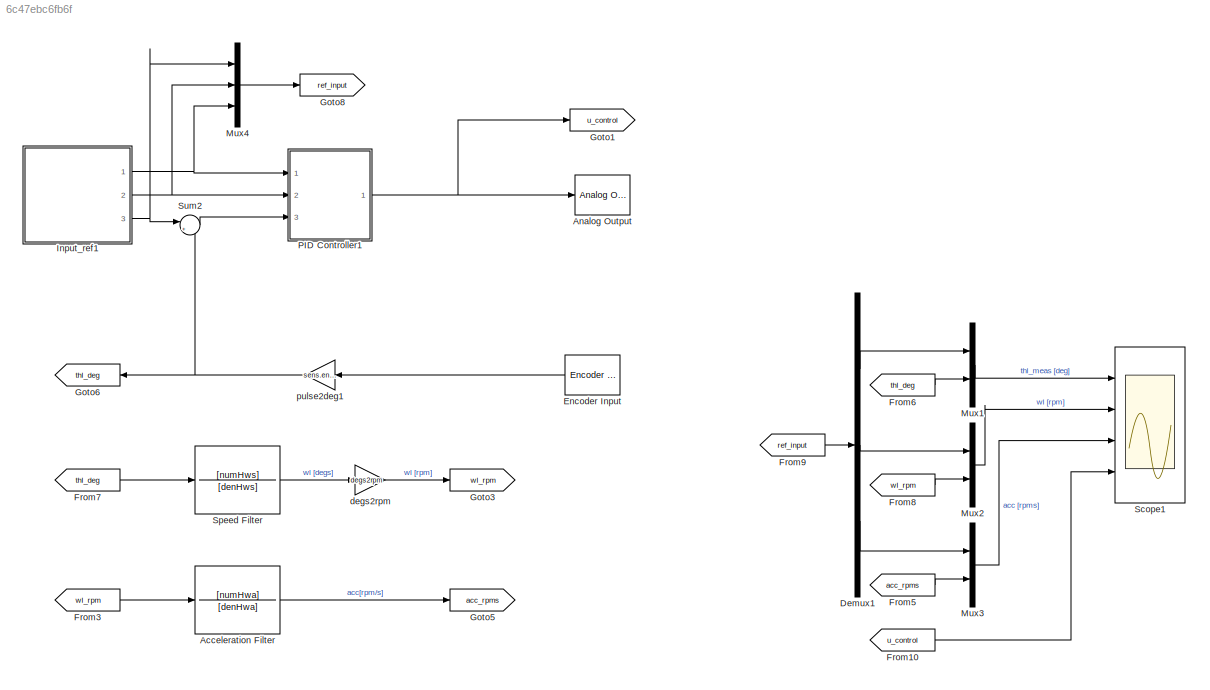
MODEL slx_6c47ebc6fb6f
KIND model
CONFIG AbsTol = auto
CONFIG EnableMultiTasking = off
CONFIG FixedStep = 0.001
CONFIG MaxStep = auto
CONFIG MinStep = auto
CONFIG RelTol = 1e-3
CONFIG SampleTimeConstraint = Unconstrained
CONFIG SolverName = ode3
CONFIG StartTime = 0.0
CONFIG StopTime = 9
BLOCK [TransferFcn] Acceleration Filter
  Denominator = [denHwa]
  Numerator = [numHwa]
BLOCK [Reference] Analog Output  REF=sldrtlib/Analog Output
  AttributesFormatString = National Instruments\nPCI-6221 [auto]
  Ports = [1]
  SourceBlock = sldrtlib/Analog Output
  SourceProductBaseCode = WT
  SourceType = Simulink Desktop Real-Time Analog Output
BLOCK [Demux] Demux1
  Outputs = 3
  Ports = [1, 3]
BLOCK [Reference] Encoder Input  REF=sldrtlib/Encoder Input
  AttributesFormatString = National Instruments\nPCI-6221 [auto]
  Ports = [0, 1]
  SourceBlock = sldrtlib/Encoder Input
  SourceProductBaseCode = WT
  SourceType = Simulink Desktop Real-Time Encoder Input
BLOCK [From] From10
  GotoTag = u_control
BLOCK [From] From3
  GotoTag = wl_rpm
BLOCK [From] From5
  GotoTag = acc_rpms
BLOCK [From] From6
  GotoTag = thl_deg
BLOCK [From] From7
  GotoTag = thl_deg
BLOCK [From] From8
  GotoTag = wl_rpm
BLOCK [From] From9
  GotoTag = ref_input
BLOCK [Goto] Goto1
  GotoTag = u_control
BLOCK [Goto] Goto3
  GotoTag = wl_rpm
BLOCK [Goto] Goto5
  GotoTag = acc_rpms
BLOCK [Goto] Goto6
  GotoTag = thl_deg
BLOCK [Goto] Goto8
  GotoTag = ref_input
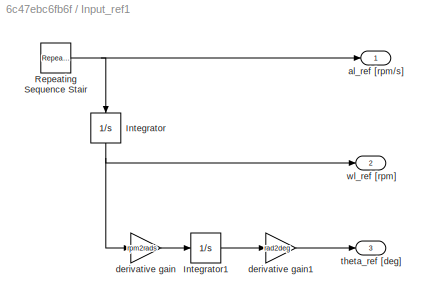
BLOCK [SubSystem] Input_ref1
  Ports = [0, 3]
  RequestExecContextInheritance = off
BLOCK [Integrator] Input_ref1/Integrator
  NameLocation = left
  Ports = [1, 1]
BLOCK [Integrator] Input_ref1/Integrator1
  Ports = [1, 1]
BLOCK [Reference] Input_ref1/Repeating Sequence Stair  REF=simulink/Sources/Repeating
Sequence
Stair
  Ports = [0, 1]
  SourceBlock = simulink/Sources/Repeating\nSequence\nStair
  SourceProductBaseCode = SL
  SourceType = Repeating Sequence Stair
BLOCK [Outport] Input_ref1/al_ref [rpm//s]
  VectorParamsAs1DForOutWhenUnconnected = off
BLOCK [Gain] Input_ref1/derivative gain
  Gain = rpm2rads
BLOCK [Gain] Input_ref1/derivative gain1
  Gain = rad2deg
BLOCK [Outport] Input_ref1/theta_ref [deg]
  Port = 3
  VectorParamsAs1DForOutWhenUnconnected = off
BLOCK [Outport] Input_ref1/wl_ref [rpm]
  Port = 2
  VectorParamsAs1DForOutWhenUnconnected = off
BLOCK [Mux] Mux1
  DisplayOption = bar
  Inputs = 2
  Ports = [2, 1]
BLOCK [Mux] Mux2
  DisplayOption = bar
  Inputs = 2
  Ports = [2, 1]
BLOCK [Mux] Mux3
  DisplayOption = bar
  Inputs = 2
  Ports = [2, 1]
BLOCK [Mux] Mux4
  DisplayOption = bar
  Inputs = 3
  Ports = [3, 1]
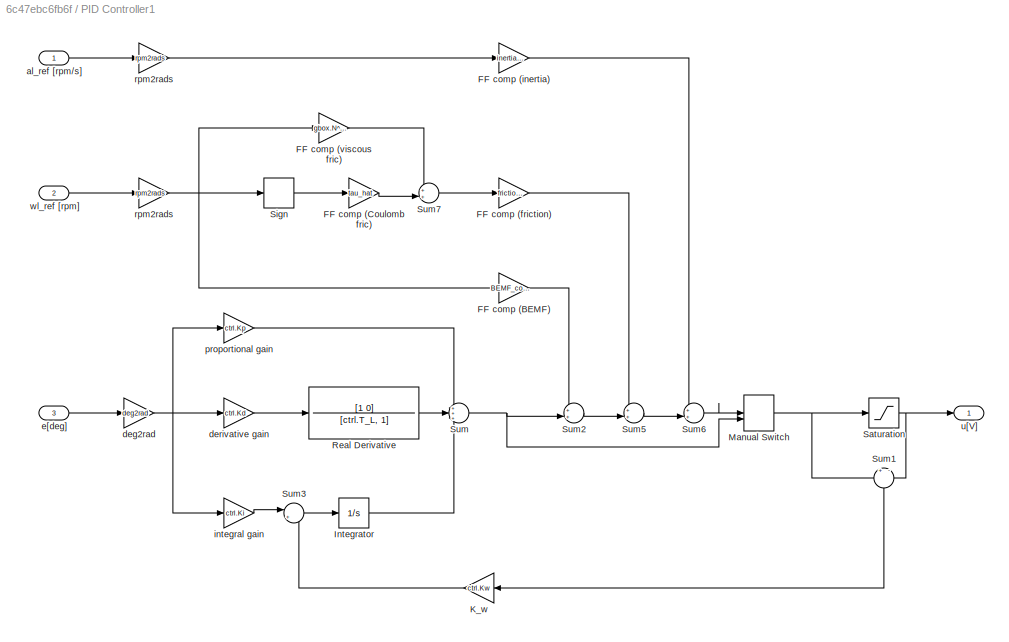
BLOCK [SubSystem] PID Controller1
  Ports = [3, 1]
  RequestExecContextInheritance = off
BLOCK [Gain] PID Controller1/FF comp (BEMF)
  Gain = BEMF_comp
BLOCK [Gain] PID Controller1/FF comp (Coulomb fric)
  Gain = tau_hat
BLOCK [Gain] PID Controller1/FF comp (friction)
  Gain = friction_comp
BLOCK [Gain] PID Controller1/FF comp (inertia)
  Gain = inertia_comp
BLOCK [Gain] PID Controller1/FF comp (viscous fric)
  Gain = gbox.N^2*Beq_hat
BLOCK [Integrator] PID Controller1/Integrator
  Ports = [1, 1]
BLOCK [Gain] PID Controller1/K_w
  Gain = ctrl.Kw
BLOCK [ManualSwitch] PID Controller1/Manual Switch
BLOCK [TransferFcn] PID Controller1/Real Derivative
  Denominator = [ctrl.T_L, 1]
  Numerator = [1 0]
BLOCK [Saturate] PID Controller1/Saturation
  LowerLimit = -10
  UpperLimit = 10
BLOCK [Signum] PID Controller1/Sign 
  ZeroCross = off
BLOCK [Sum] PID Controller1/Sum
  Inputs = +++
  Ports = [3, 1]
BLOCK [Sum] PID Controller1/Sum1
  Inputs = +|-
  NameLocation = left
  Ports = [2, 1]
BLOCK [Sum] PID Controller1/Sum2
  Inputs = ++|
  Ports = [2, 1]
BLOCK [Sum] PID Controller1/Sum3
  Inputs = |+-
  Ports = [2, 1]
BLOCK [Sum] PID Controller1/Sum5
  Inputs = ++|
  Ports = [2, 1]
BLOCK [Sum] PID Controller1/Sum6
  Inputs = ++|
  Ports = [2, 1]
BLOCK [Sum] PID Controller1/Sum7
  Inputs = ++|
  Ports = [2, 1]
BLOCK [Inport] PID Controller1/al_ref [rpm//s]  
BLOCK [Gain] PID Controller1/deg2rad
  Gain = deg2rad
BLOCK [Gain] PID Controller1/derivative gain
  Gain = ctrl.Kd
BLOCK [Inport] PID Controller1/e[deg]
  Port = 3
BLOCK [Gain] PID Controller1/integral gain
  Gain = ctrl.Ki
BLOCK [Gain] PID Controller1/proportional gain
  Gain = ctrl.Kp
BLOCK [Gain] PID Controller1/rpm2rads
  Gain = rpm2rads
BLOCK [Gain] PID Controller1/rpm2rads 
  Gain = rpm2rads
BLOCK [Outport] PID Controller1/u[V]
BLOCK [Inport] PID Controller1/wl_ref [rpm] 
  Port = 2
BLOCK [Scope] Scope1
  Floating = off
  NumInputPorts = 4
  Ports = [4]
  ScopeSpecificationString = Simulink.scopes.TimeScopeBlockCfg('CurrentConfiguration', extmgr.ConfigurationSet(extmgr.Configuration('Core','General UI',true),extmgr.Configuration('Core','Source UI',true),extmgr.Configuration('Sources','WiredSimulink',true,'DataLogging',true,'DataLoggingSaveFormat','StructureWithTime','DataLoggingVariableName','MotorData'),extmgr.Configuration('Visuals','Time Domain',true,'SerializedDisplays',...<+3624ch>
BLOCK [TransferFcn] Speed Filter
  Denominator = [denHws]
  Numerator = [numHws]
BLOCK [Sum] Sum2
  Inputs = |+-
  Ports = [2, 1]
BLOCK [Gain] degs2rpm
  Gain = degs2rpm
BLOCK [Gain] pulse2deg1
  Gain = sens.enc.pulse2deg
LINE Acceleration Filter:1 -> Goto5:1
LINE Demux1:1 -> Mux1:1
LINE Demux1:2 -> Mux2:1
LINE Demux1:3 -> Mux3:1
LINE Encoder Input:1 -> pulse2deg1:1
LINE From10:1 -> Scope1:4
LINE From3:1 -> Acceleration Filter:1
LINE From5:1 -> Mux3:2
LINE From6:1 -> Mux1:2
LINE From7:1 -> Speed Filter:1
LINE From8:1 -> Mux2:2
LINE From9:1 -> Demux1:1
LINE Input_ref1/Integrator1:1 -> Input_ref1/derivative gain1:1
NET Input_ref1/Integrator:1 -> Input_ref1/derivative gain:1, Input_ref1/wl_ref [rpm]:1
NET Input_ref1/Repeating Sequence Stair:1 -> Input_ref1/Integrator:1, Input_ref1/al_ref [rpm//s]:1
LINE Input_ref1/derivative gain1:1 -> Input_ref1/theta_ref [deg]:1
LINE Input_ref1/derivative gain:1 -> Input_ref1/Integrator1:1
NET Input_ref1:1 -> Mux4:3, PID Controller1:1
NET Input_ref1:2 -> Mux4:2, PID Controller1:2
NET Input_ref1:3 -> Mux4:1, Sum2:1
LINE Mux1:1 -> Scope1:1
LINE Mux2:1 -> Scope1:2
LINE Mux3:1 -> Scope1:3
LINE Mux4:1 -> Goto8:1
LINE PID Controller1/FF comp (BEMF):1 -> PID Controller1/Sum2:1
LINE PID Controller1/FF comp (Coulomb fric):1 -> PID Controller1/Sum7:2
LINE PID Controller1/FF comp (friction):1 -> PID Controller1/Sum5:1
LINE PID Controller1/FF comp (inertia):1 -> PID Controller1/Sum6:1
LINE PID Controller1/FF comp (viscous fric):1 -> PID Controller1/Sum7:1
LINE PID Controller1/Integrator:1 -> PID Controller1/Sum:3
LINE PID Controller1/K_w:1 -> PID Controller1/Sum3:2
NET PID Controller1/Manual Switch:1 -> PID Controller1/Saturation:1, PID Controller1/Sum1:1
LINE PID Controller1/Real Derivative:1 -> PID Controller1/Sum:2
NET PID Controller1/Saturation:1 -> PID Controller1/Sum1:2, PID Controller1/u[V]:1
LINE PID Controller1/Sign :1 -> PID Controller1/FF comp (Coulomb fric):1
LINE PID Controller1/Sum1:1 -> PID Controller1/K_w:1
LINE PID Controller1/Sum2:1 -> PID Controller1/Sum5:2
LINE PID Controller1/Sum3:1 -> PID Controller1/Integrator:1
LINE PID Controller1/Sum5:1 -> PID Controller1/Sum6:2
LINE PID Controller1/Sum6:1 -> PID Controller1/Manual Switch:1
LINE PID Controller1/Sum7:1 -> PID Controller1/FF comp (friction):1
NET PID Controller1/Sum:1 -> PID Controller1/Manual Switch:2, PID Controller1/Sum2:2
LINE PID Controller1/al_ref [rpm//s]  :1 -> PID Controller1/rpm2rads:1
NET PID Controller1/deg2rad:1 -> PID Controller1/derivative gain:1, PID Controller1/integral gain:1, PID Controller1/proportional gain:1
LINE PID Controller1/derivative gain:1 -> PID Controller1/Real Derivative:1
LINE PID Controller1/e[deg]:1 -> PID Controller1/deg2rad:1
LINE PID Controller1/integral gain:1 -> PID Controller1/Sum3:1
LINE PID Controller1/proportional gain:1 -> PID Controller1/Sum:1
NET PID Controller1/rpm2rads :1 -> PID Controller1/FF comp (BEMF):1, PID Controller1/FF comp (viscous fric):1, PID Controller1/Sign :1
LINE PID Controller1/rpm2rads:1 -> PID Controller1/FF comp (inertia):1
LINE PID Controller1/wl_ref [rpm] :1 -> PID Controller1/rpm2rads :1
NET PID Controller1:1 -> Analog Output:1, Goto1:1
LINE Speed Filter:1 -> degs2rpm:1
LINE Sum2:1 -> PID Controller1:3
LINE degs2rpm:1 -> Goto3:1
NET pulse2deg1:1 -> Goto6:1, Sum2:2
note: NET lines group one-source signal fan-out (src -> all destinations, sorted); 1:1 wires keep LINE
